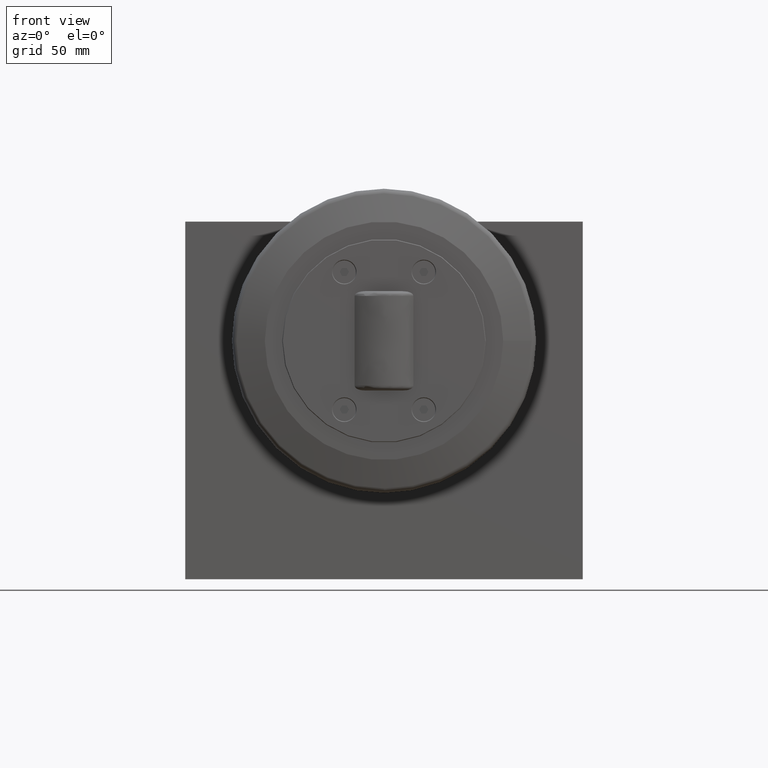
[diagram: clean part render]
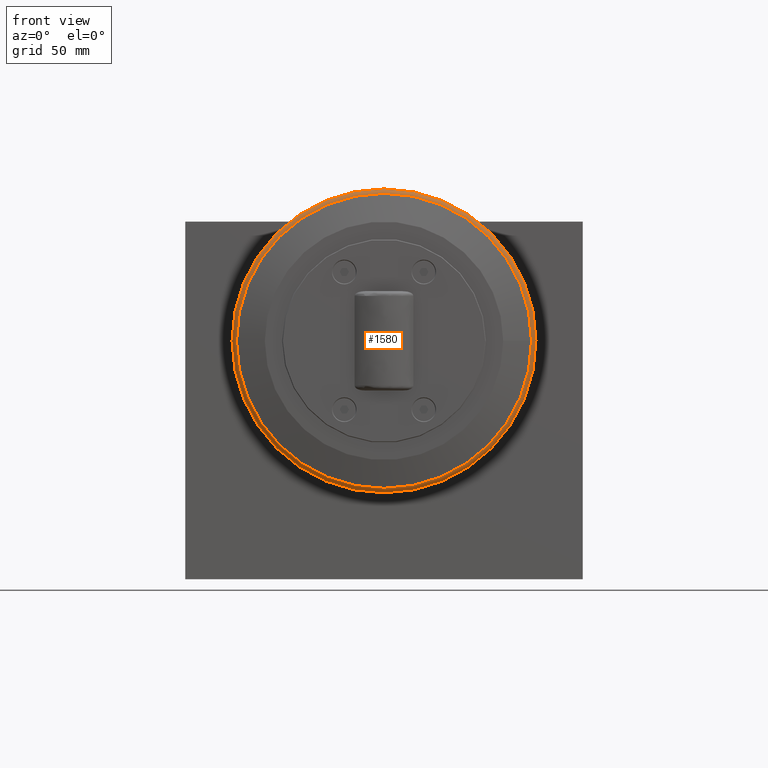
[diagram: same view with one face highlighted and labeled with its STEP entity id]
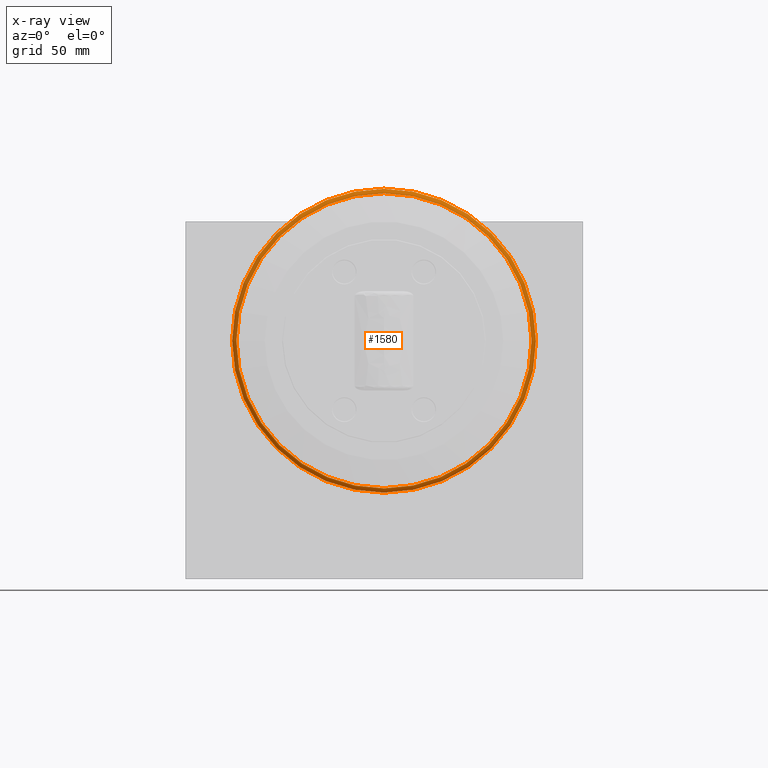
[diagram: x-ray of the same camera — body ghosted, the highlighted face saturated]
A machine part, front view. The second image highlights one B-rep face of the part: STEP entity #1580.
The next image is the same camera in x-ray: the body ghosted, the highlighted face saturated — about 0% of this face is hidden behind the body in this view.
In plain terms, the highlighted toroidal blend (fillet) surface has major radius 73.4668 mm and minor (blend) radius 3 mm.
Its self-contained STEP definition (entity closure, byte-faithful):
#31=TOROIDAL_SURFACE('',#1705,73.4667678001242,3.);
#93=CIRCLE('',#1706,74.2432249354317);
#94=CIRCLE('',#1707,74.2432249354317);
#95=CIRCLE('',#1708,3.);
#96=CIRCLE('',#1709,76.4666010021284);
#97=CIRCLE('',#1710,76.4666010021284);
#98=CIRCLE('',#1711,74.2432249354317);
#180=FACE_OUTER_BOUND('',#271,.T.);
#271=EDGE_LOOP('',(#1186,#1187,#1188,#1189,#1190,#1191,#1192));
#711=VERTEX_POINT('',#2473);
#712=VERTEX_POINT('',#2474);
#713=VERTEX_POINT('',#2476);
#714=VERTEX_POINT('',#2478);
#715=VERTEX_POINT('',#2480);
#897=EDGE_CURVE('',#711,#712,#93,.T.);
#898=EDGE_CURVE('',#712,#713,#94,.T.);
#899=EDGE_CURVE('',#713,#714,#95,.T.);
#900=EDGE_CURVE('',#714,#715,#96,.T.);
#901=EDGE_CURVE('',#715,#714,#97,.T.);
#902=EDGE_CURVE('',#713,#711,#98,.T.);
#1186=ORIENTED_EDGE('',*,*,#897,.T.);
#1187=ORIENTED_EDGE('',*,*,#898,.T.);
#1188=ORIENTED_EDGE('',*,*,#899,.T.);
#1189=ORIENTED_EDGE('',*,*,#900,.T.);
#1190=ORIENTED_EDGE('',*,*,#901,.T.);
#1191=ORIENTED_EDGE('',*,*,#899,.F.);
#1192=ORIENTED_EDGE('',*,*,#902,.T.);
#1580=ADVANCED_FACE('',(#180),#31,.T.);
#1705=AXIS2_PLACEMENT_3D('',#2472,#1992,#1993);
#1706=AXIS2_PLACEMENT_3D('',#2475,#1994,#1995);
#1707=AXIS2_PLACEMENT_3D('',#2477,#1996,#1997);
#1708=AXIS2_PLACEMENT_3D('',#2479,#1998,#1999);
#1709=AXIS2_PLACEMENT_3D('',#2481,#2000,#2001);
#1710=AXIS2_PLACEMENT_3D('',#2482,#2002,#2003);
#1711=AXIS2_PLACEMENT_3D('',#2483,#2004,#2005);
#1992=DIRECTION('center_axis',(-2.42488790685022E-16,-1.,6.88904874983737E-17));
#1993=DIRECTION('ref_axis',(-3.7168707725028E-16,9.29217693125701E-17,1.));
#1994=DIRECTION('center_axis',(2.39655015876115E-16,1.,-6.88904874983737E-17));
#1995=DIRECTION('ref_axis',(1.,-2.39655015876115E-16,4.16333634234434E-16));
#1996=DIRECTION('center_axis',(2.39655015876115E-16,1.,-6.88904874983737E-17));
#1997=DIRECTION('ref_axis',(1.,-2.39655015876115E-16,4.16333634234434E-16));
#1998=DIRECTION('center_axis',(1.,-2.42488790685022E-16,4.64608846562851E-16));
#1999=DIRECTION('ref_axis',(4.64608846562851E-16,-1.16152211640713E-16,
-1.));
#2000=DIRECTION('center_axis',(-2.42488790685022E-16,-1.,6.88904874983737E-17));
#2001=DIRECTION('ref_axis',(1.,-2.36176575775944E-16,2.93868954319699E-16));
#2002=DIRECTION('center_axis',(-2.42488790685022E-16,-1.,6.88904874983737E-17));
#2003=DIRECTION('ref_axis',(1.,-2.36176575775944E-16,2.93868954319699E-16));
#2004=DIRECTION('center_axis',(2.39655015876115E-16,1.,-6.88904874983737E-17));
#2005=DIRECTION('ref_axis',(1.,-2.39655015876115E-16,4.16333634234434E-16));
#2472=CARTESIAN_POINT('Origin',(100.,-46.4857619020691,120.));
#2473=CARTESIAN_POINT('',(25.7567750645683,-49.3835393809363,120.));
#2474=CARTESIAN_POINT('',(174.243224935432,-49.3835393809363,120.));
#2475=CARTESIAN_POINT('Origin',(100.,-49.3835393809363,120.));
#2476=CARTESIAN_POINT('',(100.,-49.3835393809363,45.7567750645684));
#2477=CARTESIAN_POINT('Origin',(100.,-49.3835393809363,120.));
#2478=CARTESIAN_POINT('',(100.,-46.5173966954601,43.5333989978716));
#2479=CARTESIAN_POINT('Origin',(100.,-46.4857619020692,46.5332321998759));
#2480=CARTESIAN_POINT('',(23.5333989978716,-46.51739669546,120.));
#2481=CARTESIAN_POINT('Origin',(100.,-46.5173966954601,120.));
#2482=CARTESIAN_POINT('Origin',(100.,-46.5173966954601,120.));
#2483=CARTESIAN_POINT('Origin',(100.,-49.3835393809363,120.));